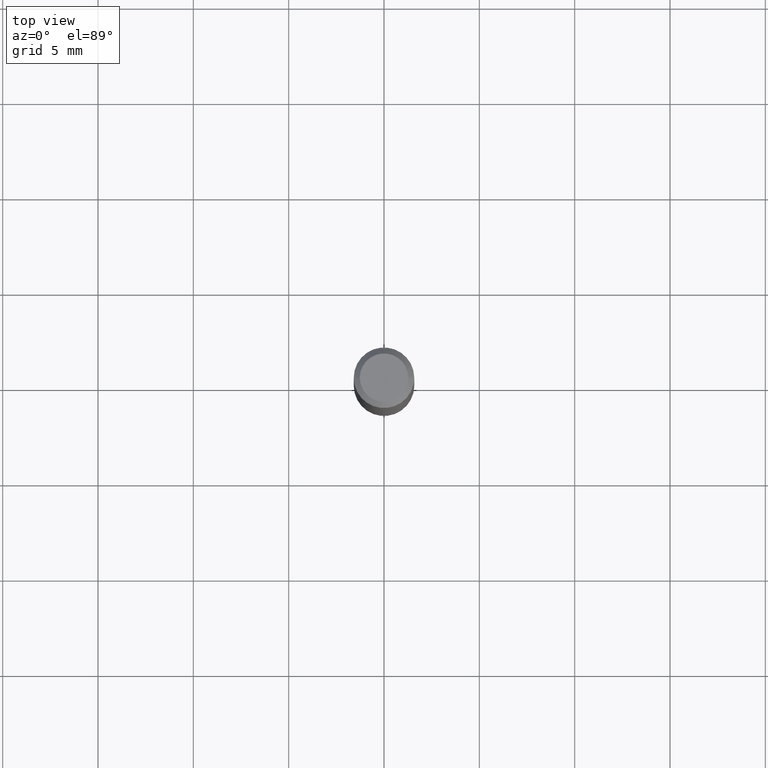
[diagram: clean part render]
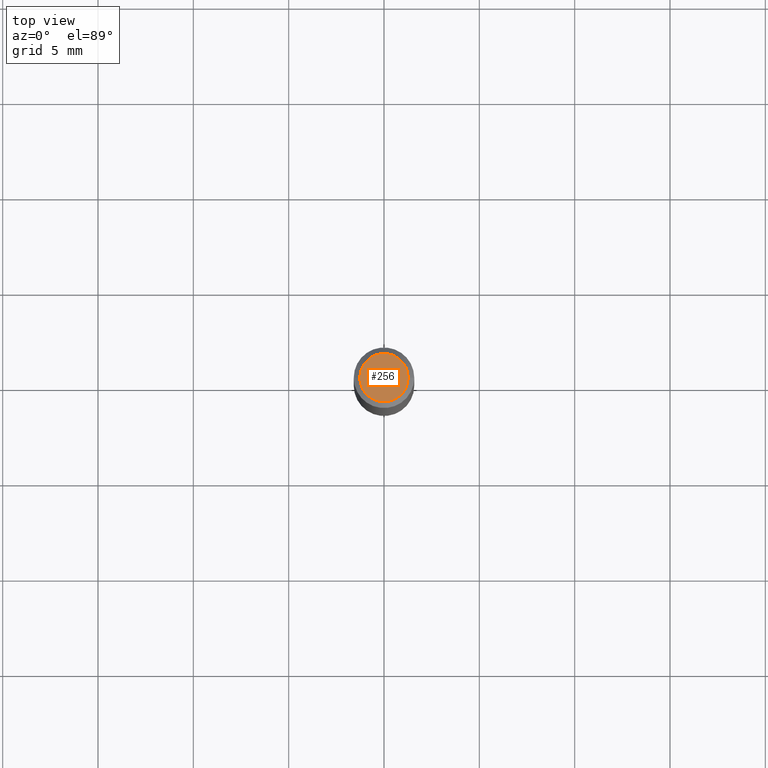
[diagram: same view with one face highlighted and labeled with its STEP entity id]
A machine part, top view. The second image highlights one B-rep face of the part: STEP entity #256.
In plain terms, the highlighted planar face has unit normal (0, -0, -1).
Its self-contained STEP definition (entity closure, byte-faithful):
#19 = DIRECTION ( 'NONE',  ( -1.000000000000000000, 6.982962677686265922E-15, -4.876176775795935793E-29 ) ) ;
#20 = DIRECTION ( 'NONE',  ( 1.000000000000000000, -6.982962677686265922E-15, 4.875957971899673662E-29 ) ) ;
#57 = DIRECTION ( 'NONE',  ( 2.438088387897960049E-29, -3.491481338843145188E-15, -1.000000000000000000 ) ) ;
#59 = CARTESIAN_POINT ( 'NONE',  ( 3.893286209682126177E-47, -5.558580879666067980E-33, -1.592040838891559689E-18 ) ) ;
#64 = CIRCLE ( 'NONE', #472, 0.04999999999999999584 ) ;
#110 = ORIENTED_EDGE ( 'NONE', *, *, #367, .T. ) ;
#111 = CARTESIAN_POINT ( 'NONE',  ( -0.04999999999999999584, 3.709698922520826725E-16, -1.592040838894077649E-18 ) ) ;
#117 = DIRECTION ( 'NONE',  ( -2.445468806185136597E-29, 3.491481338843145583E-15, 1.000000000000000000 ) ) ;
#156 = EDGE_CURVE ( 'NONE', #181, #488, #64, .T. ) ;
#168 = DIRECTION ( 'NONE',  ( -2.445468806185136597E-29, 3.491481338843145583E-15, 1.000000000000000000 ) ) ;
#181 = VERTEX_POINT ( 'NONE', #453 ) ;
#187 = CIRCLE ( 'NONE', #337, 0.04999999999999999584 ) ;
#223 = DIRECTION ( 'NONE',  ( 1.000000000000000000, -6.982962677686265922E-15, 4.875957971899673662E-29 ) ) ;
#237 = CARTESIAN_POINT ( 'NONE',  ( 1.946643104841063088E-47, -2.779290439833033990E-33, -7.960204194457798443E-19 ) ) ;
#239 = EDGE_LOOP ( 'NONE', ( #110, #476 ) ) ;
#256 = ADVANCED_FACE ( 'NONE', ( #271 ), #474, .F. ) ;
#271 = FACE_OUTER_BOUND ( 'NONE', #239, .T. ) ;
#327 = AXIS2_PLACEMENT_3D ( 'NONE', #237, #57, #19 ) ;
#337 = AXIS2_PLACEMENT_3D ( 'NONE', #59, #168, #20 ) ;
#341 = CARTESIAN_POINT ( 'NONE',  ( 3.893286209682126177E-47, -5.558580879666067980E-33, -1.592040838891559689E-18 ) ) ;
#367 = EDGE_CURVE ( 'NONE', #488, #181, #187, .T. ) ;
#453 = CARTESIAN_POINT ( 'NONE',  ( 0.04999999999999999584, -4.077247707424184705E-16, -1.592040838888913461E-18 ) ) ;
#472 = AXIS2_PLACEMENT_3D ( 'NONE', #341, #117, #223 ) ;
#474 = PLANE ( 'NONE',  #327 ) ;
#476 = ORIENTED_EDGE ( 'NONE', *, *, #156, .T. ) ;
#488 = VERTEX_POINT ( 'NONE', #111 ) ;